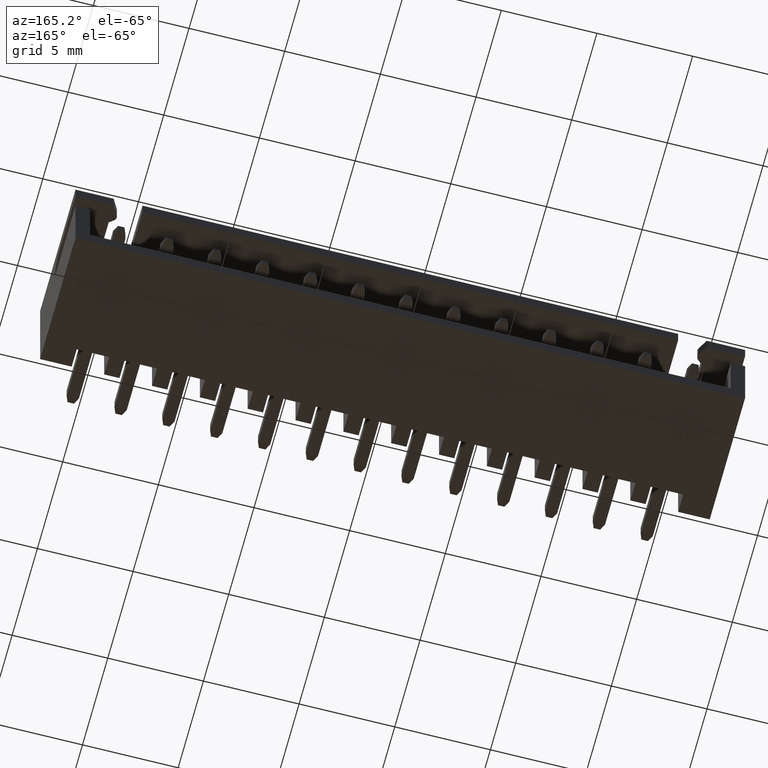
[diagram: clean part render]
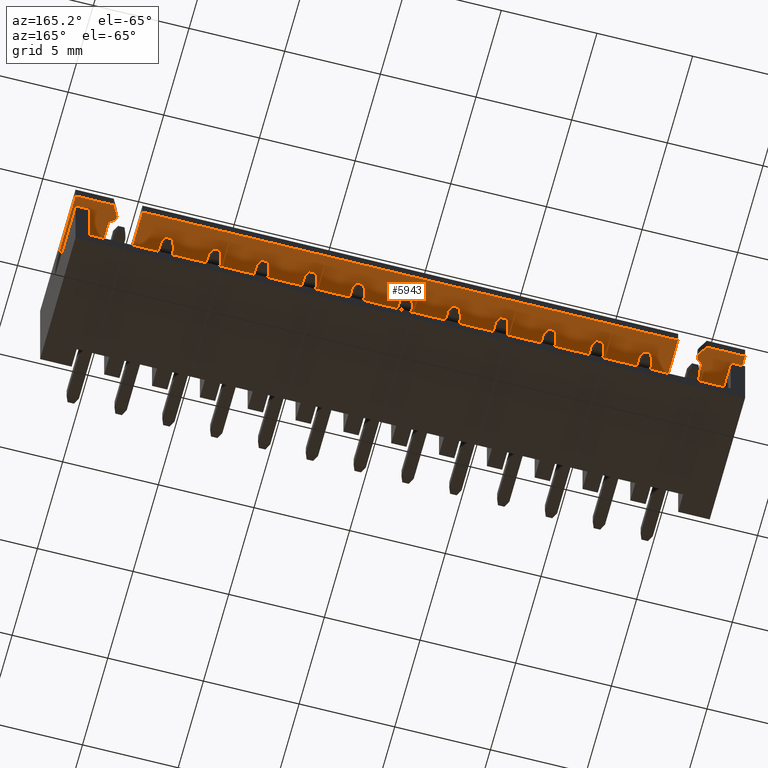
[diagram: same view with one face highlighted and labeled with its STEP entity id]
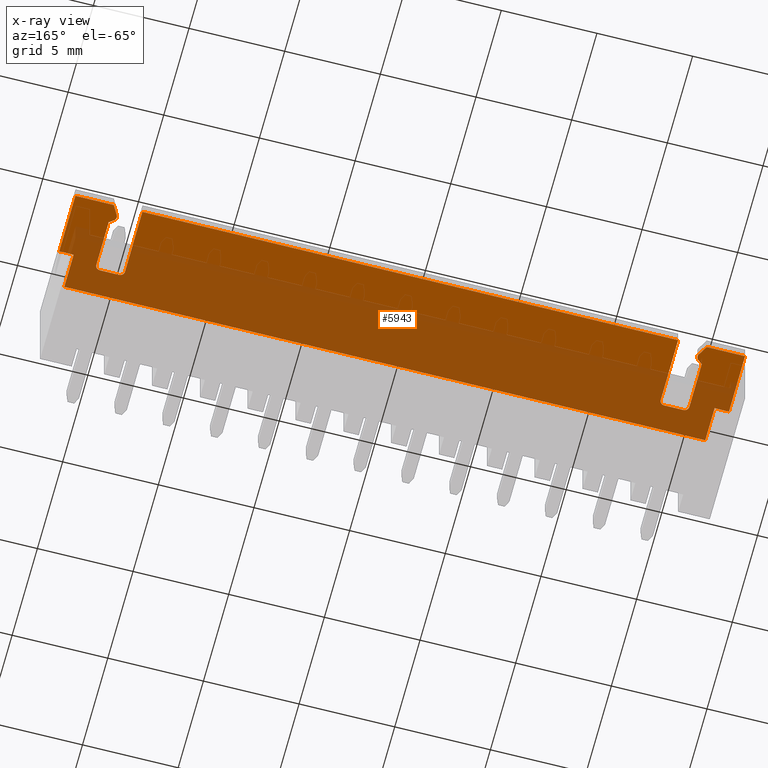
[diagram: x-ray of the same camera — body ghosted, the highlighted face saturated]
A machine part, auxiliary view. The second image highlights one B-rep face of the part: STEP entity #5943.
The next image is the same camera in x-ray: the body ghosted, the highlighted face saturated — about 62% of this face is hidden behind the body in this view.
In plain terms, the highlighted planar face has unit normal (0, 0, 1).
Its self-contained STEP definition (entity closure, byte-faithful):
#42 = AXIS2_PLACEMENT_3D ( 'NONE', #2453, #1303, #4566 ) ;
#51 = ORIENTED_EDGE ( 'NONE', *, *, #2311, .F. ) ;
#106 = DIRECTION ( 'NONE',  ( -0.000000000000000000, 1.000000000000000000, -0.000000000000000000 ) ) ;
#184 = CARTESIAN_POINT ( 'NONE',  ( -17.49999999999999645, 3.800000000000005596, 2.124999999999999112 ) ) ;
#195 = DIRECTION ( 'NONE',  ( 0.000000000000000000, -0.000000000000000000, -1.000000000000000000 ) ) ;
#222 = CARTESIAN_POINT ( 'NONE',  ( -15.25000000000000888, 3.549999999999999378, 2.125000000000000000 ) ) ;
#234 = VECTOR ( 'NONE', #106, 1000.000000000000000 ) ;
#235 = VERTEX_POINT ( 'NONE', #2568 ) ;
#348 = CARTESIAN_POINT ( 'NONE',  ( -17.49999999999999645, 7.000000000000000000, 2.125000000000000000 ) ) ;
#368 = CARTESIAN_POINT ( 'NONE',  ( 16.75000000000000711, 3.800000000000005596, 2.124999999999999112 ) ) ;
#388 = VECTOR ( 'NONE', #3759, 1000.000000000000000 ) ;
#420 = CARTESIAN_POINT ( 'NONE',  ( -16.74999999999999289, 1.950000000000000400, 2.125000000000000000 ) ) ;
#442 = LINE ( 'NONE', #5152, #3485 ) ;
#479 = DIRECTION ( 'NONE',  ( 0.7931149471206302426, -0.6090719831463600187, 0.000000000000000000 ) ) ;
#485 = DIRECTION ( 'NONE',  ( -0.000000000000000000, 0.000000000000000000, 1.000000000000000000 ) ) ;
#518 = CARTESIAN_POINT ( 'NONE',  ( -15.50000000000001066, 6.000000000000000000, 2.125000000000000000 ) ) ;
#528 = VERTEX_POINT ( 'NONE', #6701 ) ;
#611 = EDGE_CURVE ( 'NONE', #3501, #2299, #3325, .T. ) ;
#641 = DIRECTION ( 'NONE',  ( 0.000000000000000000, -0.000000000000000000, -1.000000000000000000 ) ) ;
#662 = VERTEX_POINT ( 'NONE', #3799 ) ;
#665 = EDGE_CURVE ( 'NONE', #6491, #3351, #3901, .T. ) ;
#674 = VERTEX_POINT ( 'NONE', #5869 ) ;
#750 = VERTEX_POINT ( 'NONE', #1997 ) ;
#774 = AXIS2_PLACEMENT_3D ( 'NONE', #5751, #485, #2564 ) ;
#817 = VERTEX_POINT ( 'NONE', #518 ) ;
#819 = ORIENTED_EDGE ( 'NONE', *, *, #6409, .T. ) ;
#826 = DIRECTION ( 'NONE',  ( 1.000000000000000000, 0.000000000000000000, 0.000000000000000000 ) ) ;
#829 = AXIS2_PLACEMENT_3D ( 'NONE', #1146, #195, #826 ) ;
#845 = EDGE_CURVE ( 'NONE', #5305, #4055, #1984, .T. ) ;
#855 = ORIENTED_EDGE ( 'NONE', *, *, #5363, .T. ) ;
#895 = EDGE_CURVE ( 'NONE', #4357, #5830, #4152, .T. ) ;
#907 = EDGE_CURVE ( 'NONE', #750, #662, #442, .T. ) ;
#916 = DIRECTION ( 'NONE',  ( 5.028183988338571431E-16, 1.000000000000000000, 0.000000000000000000 ) ) ;
#924 = CARTESIAN_POINT ( 'NONE',  ( 15.50000000000000888, 3.549999999999999378, 2.124999999999998224 ) ) ;
#939 = LINE ( 'NONE', #2645, #4274 ) ;
#987 = CARTESIAN_POINT ( 'NONE',  ( 17.50000000000000711, 7.000000000000000000, 2.125000000000000000 ) ) ;
#1028 = ORIENTED_EDGE ( 'NONE', *, *, #3436, .T. ) ;
#1052 = CARTESIAN_POINT ( 'NONE',  ( -14.25000000000000888, 3.299999999999999378, 2.125000000000000000 ) ) ;
#1062 = CARTESIAN_POINT ( 'NONE',  ( 14.00000000000000888, 3.549999999999999378, 2.125000000000000000 ) ) ;
#1075 = VERTEX_POINT ( 'NONE', #4943 ) ;
#1121 = VERTEX_POINT ( 'NONE', #1410 ) ;
#1122 = CARTESIAN_POINT ( 'NONE',  ( -15.42608512847103874, 6.371975687076904649, 2.125000000000000000 ) ) ;
#1146 = CARTESIAN_POINT ( 'NONE',  ( 14.25000000000000888, 3.549999999999999378, 2.125000000000000000 ) ) ;
#1159 = VECTOR ( 'NONE', #2872, 1000.000000000000000 ) ;
#1196 = LINE ( 'NONE', #4241, #1261 ) ;
#1213 = CIRCLE ( 'NONE', #774, 0.2500000000000002220 ) ;
#1242 = CARTESIAN_POINT ( 'NONE',  ( -15.50000000000000888, 3.549999999999999378, 2.125000000000000000 ) ) ;
#1261 = VECTOR ( 'NONE', #5212, 1000.000000000000000 ) ;
#1291 = VERTEX_POINT ( 'NONE', #5142 ) ;
#1303 = DIRECTION ( 'NONE',  ( -0.000000000000000000, 0.000000000000000000, 1.000000000000000000 ) ) ;
#1339 = CARTESIAN_POINT ( 'NONE',  ( 15.25000000000000888, 3.299999999999999822, 2.124999999999998224 ) ) ;
#1410 = CARTESIAN_POINT ( 'NONE',  ( -15.27381713268444940, 6.173696950296745811, 2.125000000000000000 ) ) ;
#1418 = EDGE_CURVE ( 'NONE', #6464, #5407, #3449, .T. ) ;
#1435 = CARTESIAN_POINT ( 'NONE',  ( -15.25000000000000888, 3.299999999999999378, 2.125000000000000000 ) ) ;
#1460 = CARTESIAN_POINT ( 'NONE',  ( -15.50000000000001066, 6.000000000000000000, 2.125000000000000000 ) ) ;
#1472 = LINE ( 'NONE', #5621, #2682 ) ;
#1474 = CARTESIAN_POINT ( 'NONE',  ( -14.00000000000000533, 7.000000000000000000, 2.125000000000000000 ) ) ;
#1485 = ORIENTED_EDGE ( 'NONE', *, *, #895, .F. ) ;
#1555 = ORIENTED_EDGE ( 'NONE', *, *, #4477, .T. ) ;
#1570 = CARTESIAN_POINT ( 'NONE',  ( -15.20957877752492848, 6.496975687076905537, 2.125000000000000000 ) ) ;
#1644 = VECTOR ( 'NONE', #479, 1000.000000000000000 ) ;
#1647 = DIRECTION ( 'NONE',  ( 0.5000000000000047740, -0.8660254037844358210, 0.000000000000000000 ) ) ;
#1686 = LINE ( 'NONE', #3288, #388 ) ;
#1726 = CARTESIAN_POINT ( 'NONE',  ( -16.74999999999999289, 7.000000000000000000, 2.125000000000000000 ) ) ;
#1763 = LINE ( 'NONE', #4874, #3886 ) ;
#1778 = ORIENTED_EDGE ( 'NONE', *, *, #1996, .T. ) ;
#1821 = CARTESIAN_POINT ( 'NONE',  ( 15.27381713268444940, 6.173696950296746699, 2.124999999999998224 ) ) ;
#1843 = VERTEX_POINT ( 'NONE', #2004 ) ;
#1931 = VERTEX_POINT ( 'NONE', #1242 ) ;
#1935 = CIRCLE ( 'NONE', #829, 0.2500000000000002220 ) ;
#1984 = LINE ( 'NONE', #6641, #5424 ) ;
#1996 = EDGE_CURVE ( 'NONE', #3697, #2299, #1763, .T. ) ;
#1997 = CARTESIAN_POINT ( 'NONE',  ( -17.49999999999999645, 3.800000000000005596, 2.124999999999999112 ) ) ;
#2004 = CARTESIAN_POINT ( 'NONE',  ( 16.75000000000000711, 1.950000000000000400, 2.125000000000000000 ) ) ;
#2027 = DIRECTION ( 'NONE',  ( 1.000000000000000000, -3.469446951953611033E-15, 0.000000000000000000 ) ) ;
#2037 = ORIENTED_EDGE ( 'NONE', *, *, #1418, .T. ) ;
#2066 = CIRCLE ( 'NONE', #42, 0.2500000000000002220 ) ;
#2071 = EDGE_CURVE ( 'NONE', #4359, #6112, #5906, .T. ) ;
#2138 = AXIS2_PLACEMENT_3D ( 'NONE', #420, #6265, #5235 ) ;
#2185 = ORIENTED_EDGE ( 'NONE', *, *, #3112, .F. ) ;
#2208 = LINE ( 'NONE', #5767, #3784 ) ;
#2251 = EDGE_CURVE ( 'NONE', #6112, #6464, #6294, .T. ) ;
#2256 = VECTOR ( 'NONE', #916, 1000.000000000000000 ) ;
#2269 = VECTOR ( 'NONE', #5359, 1000.000000000000000 ) ;
#2280 = DIRECTION ( 'NONE',  ( -0.000000000000000000, 0.000000000000000000, 1.000000000000000000 ) ) ;
#2299 = VERTEX_POINT ( 'NONE', #3945 ) ;
#2311 = EDGE_CURVE ( 'NONE', #1075, #4994, #1935, .T. ) ;
#2347 = DIRECTION ( 'NONE',  ( 1.000000000000000000, 0.000000000000000000, 0.000000000000000000 ) ) ;
#2361 = EDGE_LOOP ( 'NONE', ( #3599, #5101, #3754, #51, #5823, #5251, #6331, #1485, #6433, #4547, #1028, #1778, #4350, #6115, #2185, #6686, #4796, #4565, #5425, #4864, #2037, #3253, #1555, #855, #6448, #6459, #819 ) ) ;
#2366 = EDGE_CURVE ( 'NONE', #528, #1291, #5626, .T. ) ;
#2449 = EDGE_CURVE ( 'NONE', #5339, #1075, #1196, .T. ) ;
#2453 = CARTESIAN_POINT ( 'NONE',  ( 15.42608512847103874, 6.371975687076904649, 2.125000000000000000 ) ) ;
#2464 = AXIS2_PLACEMENT_3D ( 'NONE', #5854, #641, #6297 ) ;
#2467 = EDGE_CURVE ( 'NONE', #1291, #674, #2208, .T. ) ;
#2468 = LINE ( 'NONE', #3888, #3961 ) ;
#2531 = CARTESIAN_POINT ( 'NONE',  ( -15.20957877752492848, 6.496975687076904649, 2.125000000000000000 ) ) ;
#2564 = DIRECTION ( 'NONE',  ( 1.000000000000000000, 0.000000000000000000, 0.000000000000000000 ) ) ;
#2568 = CARTESIAN_POINT ( 'NONE',  ( -16.74999999999999289, 1.950000000000000400, 2.125000000000000000 ) ) ;
#2571 = DIRECTION ( 'NONE',  ( 0.000000000000000000, -0.000000000000000000, -1.000000000000000000 ) ) ;
#2592 = DIRECTION ( 'NONE',  ( 1.000000000000000000, -0.000000000000000000, -0.000000000000000000 ) ) ;
#2645 = CARTESIAN_POINT ( 'NONE',  ( 14.00000000000000533, 7.000000000000000000, 2.125000000000000000 ) ) ;
#2662 = CARTESIAN_POINT ( 'NONE',  ( 15.50000000000001066, 6.000000000000000000, 2.125000000000000000 ) ) ;
#2682 = VECTOR ( 'NONE', #5487, 1000.000000000000000 ) ;
#2747 = LINE ( 'NONE', #4798, #234 ) ;
#2799 = AXIS2_PLACEMENT_3D ( 'NONE', #4093, #2571, #2027 ) ;
#2806 = CARTESIAN_POINT ( 'NONE',  ( -15.50000000000000711, 7.000000000000000000, 2.125000000000000000 ) ) ;
#2818 = VERTEX_POINT ( 'NONE', #924 ) ;
#2872 = DIRECTION ( 'NONE',  ( -7.080503983578802837E-16, -1.000000000000000000, 0.000000000000000000 ) ) ;
#3015 = VECTOR ( 'NONE', #1647, 1000.000000000000000 ) ;
#3112 = EDGE_CURVE ( 'NONE', #235, #1843, #6347, .T. ) ;
#3253 = ORIENTED_EDGE ( 'NONE', *, *, #4185, .T. ) ;
#3258 = DIRECTION ( 'NONE',  ( 1.000000000000000000, 0.000000000000000000, 0.000000000000000000 ) ) ;
#3285 = EDGE_CURVE ( 'NONE', #5830, #2818, #4520, .T. ) ;
#3288 = CARTESIAN_POINT ( 'NONE',  ( -17.49999999999999645, 7.000000000000000000, 2.125000000000000000 ) ) ;
#3325 = LINE ( 'NONE', #184, #4882 ) ;
#3351 = VERTEX_POINT ( 'NONE', #4408 ) ;
#3391 = DIRECTION ( 'NONE',  ( -0.5000000000000047740, -0.8660254037844358210, 0.000000000000000000 ) ) ;
#3436 = EDGE_CURVE ( 'NONE', #6491, #3697, #3948, .T. ) ;
#3449 = CIRCLE ( 'NONE', #2799, 0.2500000000000002220 ) ;
#3455 = CARTESIAN_POINT ( 'NONE',  ( 15.50000000000001066, 6.000000000000000000, 2.124999999999998224 ) ) ;
#3485 = VECTOR ( 'NONE', #2592, 1000.000000000000000 ) ;
#3501 = VERTEX_POINT ( 'NONE', #368 ) ;
#3599 = ORIENTED_EDGE ( 'NONE', *, *, #2366, .T. ) ;
#3663 = CARTESIAN_POINT ( 'NONE',  ( -15.17608512847103874, 6.371975687076904649, 2.125000000000000000 ) ) ;
#3688 = CIRCLE ( 'NONE', #4124, 0.2500000000000002220 ) ;
#3697 = VERTEX_POINT ( 'NONE', #987 ) ;
#3754 = ORIENTED_EDGE ( 'NONE', *, *, #6025, .F. ) ;
#3759 = DIRECTION ( 'NONE',  ( 0.000000000000000000, -1.000000000000000000, -2.710505431213766015E-16 ) ) ;
#3784 = VECTOR ( 'NONE', #3258, 1000.000000000000000 ) ;
#3799 = CARTESIAN_POINT ( 'NONE',  ( -16.74999999999999289, 3.799999999999999822, 2.125000000000000000 ) ) ;
#3831 = DIRECTION ( 'NONE',  ( 0.000000000000000000, -0.000000000000000000, -1.000000000000000000 ) ) ;
#3853 = EDGE_CURVE ( 'NONE', #3351, #4357, #2066, .T. ) ;
#3872 = DIRECTION ( 'NONE',  ( 1.000000000000000000, 0.000000000000000000, 0.000000000000000000 ) ) ;
#3886 = VECTOR ( 'NONE', #5316, 1000.000000000000000 ) ;
#3888 = CARTESIAN_POINT ( 'NONE',  ( 16.75000000000000711, 1.950000000000000400, 2.125000000000000000 ) ) ;
#3901 = LINE ( 'NONE', #5964, #4554 ) ;
#3945 = CARTESIAN_POINT ( 'NONE',  ( 17.50000000000000711, 3.800000000000005596, 2.124999999999999112 ) ) ;
#3948 = LINE ( 'NONE', #5532, #6698 ) ;
#3961 = VECTOR ( 'NONE', #5983, 1000.000000000000000 ) ;
#4055 = VERTEX_POINT ( 'NONE', #1052 ) ;
#4071 = CIRCLE ( 'NONE', #2464, 0.2500000000000002220 ) ;
#4093 = CARTESIAN_POINT ( 'NONE',  ( -15.42608512847103874, 6.371975687076904649, 2.125000000000000000 ) ) ;
#4124 = AXIS2_PLACEMENT_3D ( 'NONE', #1122, #3831, #5897 ) ;
#4135 = FACE_OUTER_BOUND ( 'NONE', #2361, .T. ) ;
#4152 = LINE ( 'NONE', #2662, #1644 ) ;
#4185 = EDGE_CURVE ( 'NONE', #5407, #1121, #3688, .T. ) ;
#4241 = CARTESIAN_POINT ( 'NONE',  ( 14.25000000000000888, 3.299999999999999378, 2.125000000000000000 ) ) ;
#4274 = VECTOR ( 'NONE', #6658, 1000.000000000000000 ) ;
#4291 = EDGE_CURVE ( 'NONE', #4359, #750, #1686, .T. ) ;
#4350 = ORIENTED_EDGE ( 'NONE', *, *, #611, .F. ) ;
#4357 = VERTEX_POINT ( 'NONE', #1821 ) ;
#4359 = VERTEX_POINT ( 'NONE', #348 ) ;
#4408 = CARTESIAN_POINT ( 'NONE',  ( 15.20957877752492848, 6.496975687076904649, 2.124999999999998224 ) ) ;
#4477 = EDGE_CURVE ( 'NONE', #1121, #817, #6122, .T. ) ;
#4520 = LINE ( 'NONE', #5402, #1159 ) ;
#4547 = ORIENTED_EDGE ( 'NONE', *, *, #665, .F. ) ;
#4554 = VECTOR ( 'NONE', #3391, 1000.000000000000000 ) ;
#4565 = ORIENTED_EDGE ( 'NONE', *, *, #4291, .F. ) ;
#4566 = DIRECTION ( 'NONE',  ( 1.000000000000000000, 0.000000000000000000, 0.000000000000000000 ) ) ;
#4590 = PLANE ( 'NONE',  #2138 ) ;
#4671 = EDGE_CURVE ( 'NONE', #2818, #5339, #4071, .T. ) ;
#4796 = ORIENTED_EDGE ( 'NONE', *, *, #907, .F. ) ;
#4798 = CARTESIAN_POINT ( 'NONE',  ( -16.74999999999999289, 1.950000000000000400, 2.125000000000000000 ) ) ;
#4864 = ORIENTED_EDGE ( 'NONE', *, *, #2251, .T. ) ;
#4874 = CARTESIAN_POINT ( 'NONE',  ( 17.50000000000000711, 7.000000000000000000, 2.125000000000000000 ) ) ;
#4882 = VECTOR ( 'NONE', #6364, 1000.000000000000000 ) ;
#4906 = EDGE_CURVE ( 'NONE', #1843, #3501, #2468, .T. ) ;
#4943 = CARTESIAN_POINT ( 'NONE',  ( 14.25000000000000888, 3.299999999999998046, 2.124999999999998224 ) ) ;
#4994 = VERTEX_POINT ( 'NONE', #1062 ) ;
#5101 = ORIENTED_EDGE ( 'NONE', *, *, #2467, .T. ) ;
#5142 = CARTESIAN_POINT ( 'NONE',  ( -14.00000000000000533, 7.000000000000000000, 2.125000000000000000 ) ) ;
#5152 = CARTESIAN_POINT ( 'NONE',  ( -17.49999999999999645, 3.800000000000005596, 2.124999999999999112 ) ) ;
#5212 = DIRECTION ( 'NONE',  ( -1.000000000000000000, -4.336808689942022173E-16, 0.000000000000000000 ) ) ;
#5214 = EDGE_CURVE ( 'NONE', #1931, #5305, #5473, .T. ) ;
#5229 = CARTESIAN_POINT ( 'NONE',  ( 15.50000000000000711, 7.000000000000000000, 2.124999999999998224 ) ) ;
#5235 = DIRECTION ( 'NONE',  ( 1.000000000000000000, 0.000000000000000000, 0.000000000000000000 ) ) ;
#5251 = ORIENTED_EDGE ( 'NONE', *, *, #4671, .F. ) ;
#5305 = VERTEX_POINT ( 'NONE', #1435 ) ;
#5316 = DIRECTION ( 'NONE',  ( 0.000000000000000000, -1.000000000000000000, -2.710505431213766015E-16 ) ) ;
#5339 = VERTEX_POINT ( 'NONE', #1339 ) ;
#5359 = DIRECTION ( 'NONE',  ( 1.000000000000000000, 0.000000000000000000, 0.000000000000000000 ) ) ;
#5363 = EDGE_CURVE ( 'NONE', #817, #1931, #1472, .T. ) ;
#5402 = CARTESIAN_POINT ( 'NONE',  ( 15.50000000000000888, 3.549999999999999378, 2.125000000000000000 ) ) ;
#5407 = VERTEX_POINT ( 'NONE', #3663 ) ;
#5424 = VECTOR ( 'NONE', #6179, 1000.000000000000000 ) ;
#5425 = ORIENTED_EDGE ( 'NONE', *, *, #2071, .T. ) ;
#5473 = CIRCLE ( 'NONE', #5806, 0.2500000000000002220 ) ;
#5487 = DIRECTION ( 'NONE',  ( 7.080503983578802837E-16, -1.000000000000000000, 0.000000000000000000 ) ) ;
#5488 = CARTESIAN_POINT ( 'NONE',  ( -16.74999999999999289, 1.950000000000000400, 2.125000000000000000 ) ) ;
#5532 = CARTESIAN_POINT ( 'NONE',  ( -16.74999999999999289, 7.000000000000000000, 2.125000000000000000 ) ) ;
#5606 = VECTOR ( 'NONE', #3872, 1000.000000000000000 ) ;
#5621 = CARTESIAN_POINT ( 'NONE',  ( -15.50000000000000888, 3.549999999999999378, 2.125000000000000000 ) ) ;
#5626 = LINE ( 'NONE', #1474, #2256 ) ;
#5735 = EDGE_CURVE ( 'NONE', #235, #662, #2747, .T. ) ;
#5751 = CARTESIAN_POINT ( 'NONE',  ( -14.25000000000000888, 3.549999999999999378, 2.125000000000000000 ) ) ;
#5767 = CARTESIAN_POINT ( 'NONE',  ( -16.74999999999999289, 7.000000000000000000, 2.125000000000000000 ) ) ;
#5806 = AXIS2_PLACEMENT_3D ( 'NONE', #222, #2280, #2347 ) ;
#5823 = ORIENTED_EDGE ( 'NONE', *, *, #2449, .F. ) ;
#5830 = VERTEX_POINT ( 'NONE', #3455 ) ;
#5854 = CARTESIAN_POINT ( 'NONE',  ( 15.25000000000000888, 3.549999999999999378, 2.125000000000000000 ) ) ;
#5869 = CARTESIAN_POINT ( 'NONE',  ( 14.00000000000000533, 7.000000000000000000, 2.125000000000000000 ) ) ;
#5897 = DIRECTION ( 'NONE',  ( 1.000000000000000000, 0.000000000000000000, 0.000000000000000000 ) ) ;
#5906 = LINE ( 'NONE', #1726, #5606 ) ;
#5943 = ADVANCED_FACE ( 'NONE', ( #4135 ), #4590, .F. ) ;
#5964 = CARTESIAN_POINT ( 'NONE',  ( 15.20957877752492848, 6.496975687076905537, 2.125000000000000000 ) ) ;
#5983 = DIRECTION ( 'NONE',  ( -0.000000000000000000, 1.000000000000000000, -0.000000000000000000 ) ) ;
#6009 = DIRECTION ( 'NONE',  ( 1.000000000000000000, 0.000000000000000000, 0.000000000000000000 ) ) ;
#6025 = EDGE_CURVE ( 'NONE', #4994, #674, #939, .T. ) ;
#6072 = VECTOR ( 'NONE', #6655, 1000.000000000000000 ) ;
#6112 = VERTEX_POINT ( 'NONE', #2806 ) ;
#6115 = ORIENTED_EDGE ( 'NONE', *, *, #4906, .F. ) ;
#6122 = LINE ( 'NONE', #1460, #6072 ) ;
#6179 = DIRECTION ( 'NONE',  ( 1.000000000000000000, -4.336808689942022173E-16, 0.000000000000000000 ) ) ;
#6265 = DIRECTION ( 'NONE',  ( -0.000000000000000000, 0.000000000000000000, 1.000000000000000000 ) ) ;
#6294 = LINE ( 'NONE', #1570, #3015 ) ;
#6297 = DIRECTION ( 'NONE',  ( 1.000000000000000000, 0.000000000000000000, 0.000000000000000000 ) ) ;
#6331 = ORIENTED_EDGE ( 'NONE', *, *, #3285, .F. ) ;
#6347 = LINE ( 'NONE', #5488, #2269 ) ;
#6364 = DIRECTION ( 'NONE',  ( 1.000000000000000000, -0.000000000000000000, -0.000000000000000000 ) ) ;
#6409 = EDGE_CURVE ( 'NONE', #4055, #528, #1213, .T. ) ;
#6433 = ORIENTED_EDGE ( 'NONE', *, *, #3853, .F. ) ;
#6448 = ORIENTED_EDGE ( 'NONE', *, *, #5214, .T. ) ;
#6459 = ORIENTED_EDGE ( 'NONE', *, *, #845, .T. ) ;
#6464 = VERTEX_POINT ( 'NONE', #2531 ) ;
#6491 = VERTEX_POINT ( 'NONE', #5229 ) ;
#6641 = CARTESIAN_POINT ( 'NONE',  ( -14.25000000000000888, 3.299999999999999378, 2.125000000000000000 ) ) ;
#6655 = DIRECTION ( 'NONE',  ( -0.7931149471206302426, -0.6090719831463600187, 0.000000000000000000 ) ) ;
#6658 = DIRECTION ( 'NONE',  ( -5.028183988338571431E-16, 1.000000000000000000, 0.000000000000000000 ) ) ;
#6686 = ORIENTED_EDGE ( 'NONE', *, *, #5735, .T. ) ;
#6698 = VECTOR ( 'NONE', #6009, 1000.000000000000000 ) ;
#6701 = CARTESIAN_POINT ( 'NONE',  ( -14.00000000000000888, 3.549999999999999378, 2.125000000000000000 ) ) ;